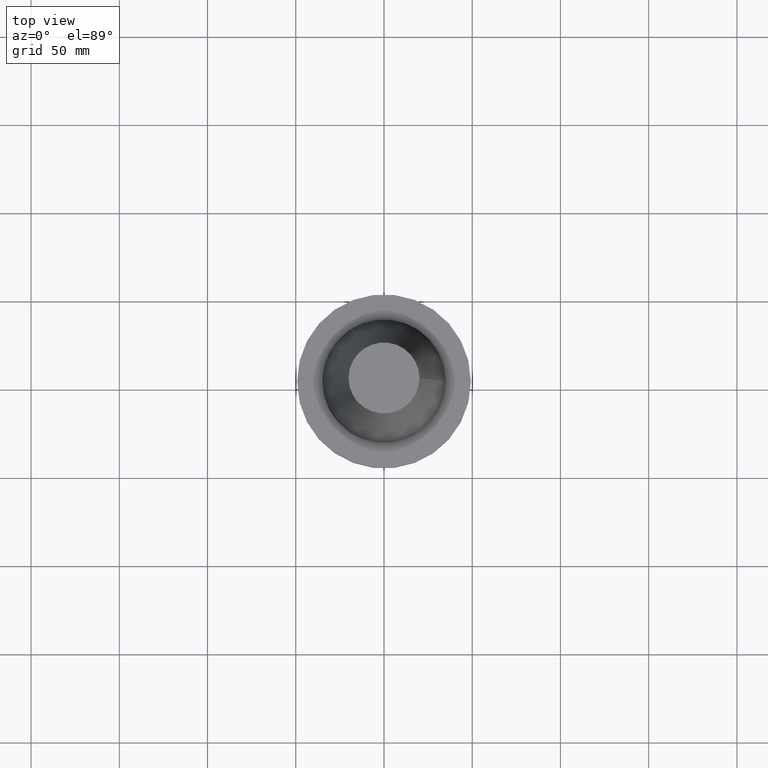
[diagram: clean part render]
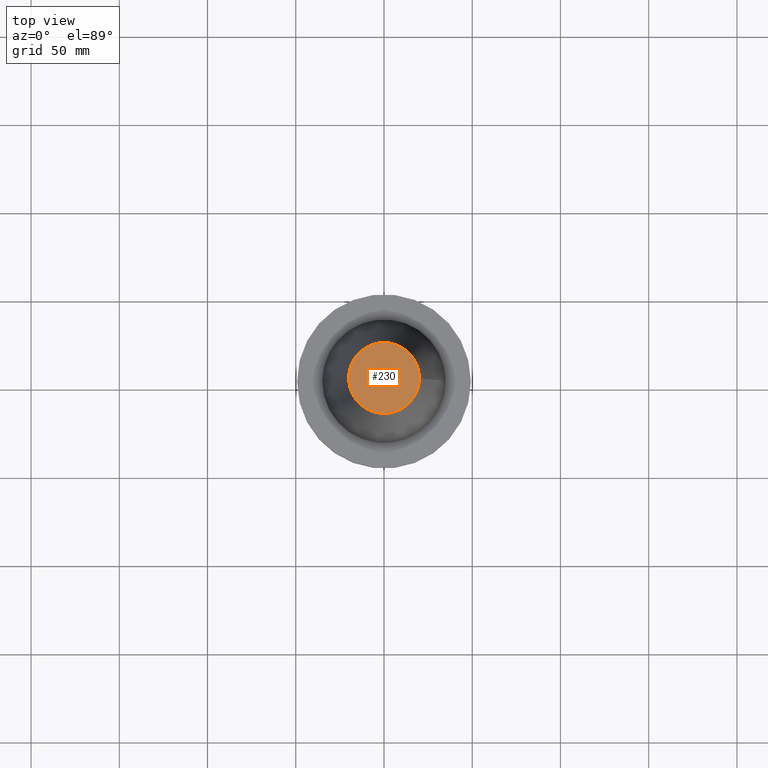
[diagram: same view with one face highlighted and labeled with its STEP entity id]
A machine part, top view. The second image highlights one B-rep face of the part: STEP entity #230.
In plain terms, the highlighted planar face has unit normal (0, 0, -1).
Its self-contained STEP definition (entity closure, byte-faithful):
#10 = CARTESIAN_POINT ( 'NONE',  ( 0.000000000000000000, 0.000000000000000000, 101.5999999999999801 ) ) ;
#36 = DIRECTION ( 'NONE',  ( 1.000000000000000000, 0.000000000000000000, 0.000000000000000000 ) ) ;
#62 = DIRECTION ( 'NONE',  ( -0.000000000000000000, -0.000000000000000000, 1.000000000000000000 ) ) ;
#94 = CARTESIAN_POINT ( 'NONE',  ( 0.000000000000000000, 20.10819343178871321, 101.5999999999999943 ) ) ;
#105 = CIRCLE ( 'NONE', #377, 20.10819343178871321 ) ;
#111 = AXIS2_PLACEMENT_3D ( 'NONE', #94, #327, #129 ) ;
#129 = DIRECTION ( 'NONE',  ( -1.000000000000000000, 0.000000000000000000, -0.000000000000000000 ) ) ;
#132 = PLANE ( 'NONE',  #111 ) ;
#134 = VERTEX_POINT ( 'NONE', #219 ) ;
#219 = CARTESIAN_POINT ( 'NONE',  ( 20.10819343178871321, 0.000000000000000000, 101.5999999999999801 ) ) ;
#230 = ADVANCED_FACE ( 'NONE', ( #278 ), #132, .F. ) ;
#278 = FACE_OUTER_BOUND ( 'NONE', #339, .T. ) ;
#279 = EDGE_CURVE ( 'NONE', #134, #134, #105, .T. ) ;
#308 = ORIENTED_EDGE ( 'NONE', *, *, #279, .T. ) ;
#327 = DIRECTION ( 'NONE',  ( 0.000000000000000000, 0.000000000000000000, -1.000000000000000000 ) ) ;
#339 = EDGE_LOOP ( 'NONE', ( #308 ) ) ;
#377 = AXIS2_PLACEMENT_3D ( 'NONE', #10, #62, #36 ) ;